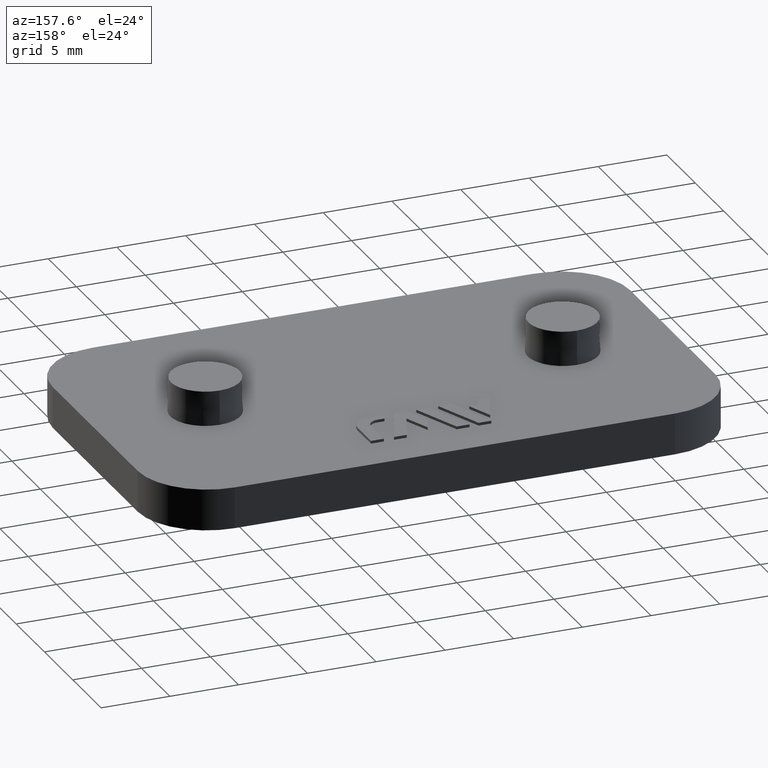
[diagram: clean part render]
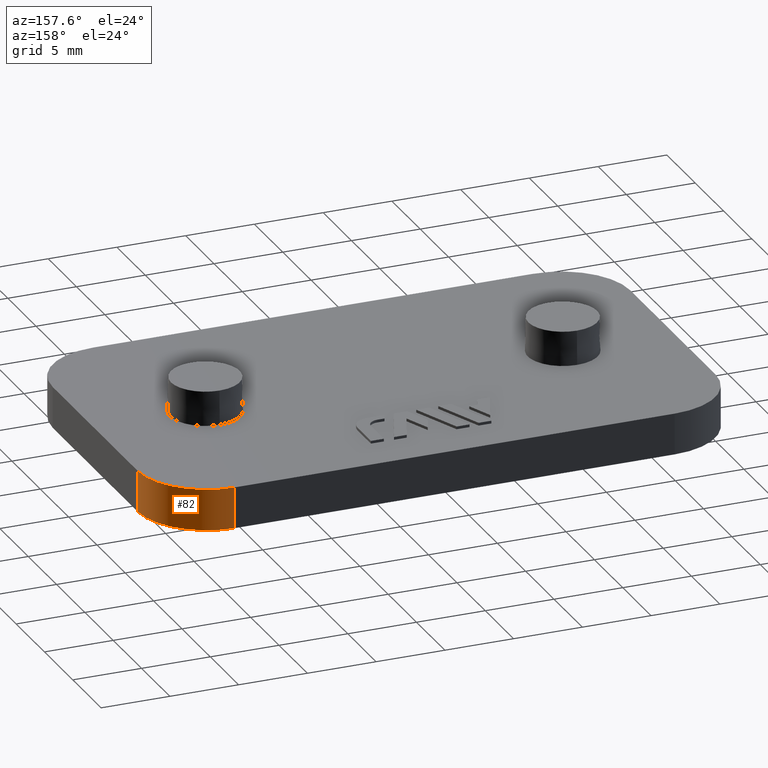
[diagram: same view with one face highlighted and labeled with its STEP entity id]
A machine part, auxiliary view. The second image highlights one B-rep face of the part: STEP entity #82.
In plain terms, the highlighted cylindrical surface (partial cylindrical patch) has radius 5 mm, axis along (-0, 0, 1).
Its self-contained STEP definition (entity closure, byte-faithful):
#82 = ADVANCED_FACE( '', ( #160 ), #161, .T. );
#160 = FACE_OUTER_BOUND( '', #293, .T. );
#161 = CYLINDRICAL_SURFACE( '', #294, 5.00000000000000 );
#293 = EDGE_LOOP( '', ( #502, #503, #504, #505 ) );
#294 = AXIS2_PLACEMENT_3D( '', #506, #507, #508 );
#502 = ORIENTED_EDGE( '', *, *, #945, .F. );
#503 = ORIENTED_EDGE( '', *, *, #920, .F. );
#504 = ORIENTED_EDGE( '', *, *, #893, .T. );
#505 = ORIENTED_EDGE( '', *, *, #929, .T. );
#506 = CARTESIAN_POINT( '', ( 16.0000000000000, 7.50000000000001, 64.3690937321107 ) );
#507 = DIRECTION( '', ( -1.60751816480226E-016, 1.81794180051289E-016, 1.00000000000000 ) );
#508 = DIRECTION( '', ( 1.00000000000000, 5.90573087550521E-032, 1.60751816480226E-016 ) );
#893 = EDGE_CURVE( '', #1052, #1053, #1054, .T. );
#920 = EDGE_CURVE( '', #1052, #1106, #1107, .T. );
#929 = EDGE_CURVE( '', #1053, #1119, #1122, .T. );
#945 = EDGE_CURVE( '', #1106, #1119, #1151, .T. );
#1052 = VERTEX_POINT( '', #1311 );
#1053 = VERTEX_POINT( '', #1312 );
#1054 = CIRCLE( '', #1313, 5.00000000000000 );
#1106 = VERTEX_POINT( '', #1384 );
#1107 = LINE( '', #1385, #1386 );
#1119 = VERTEX_POINT( '', #1405 );
#1122 = LINE( '', #1409, #1410 );
#1151 = CIRCLE( '', #1453, 5.00000000000000 );
#1311 = CARTESIAN_POINT( '', ( 16.0000000000000, 12.5000000000000, 2.99999999999998 ) );
#1312 = CARTESIAN_POINT( '', ( 21.0000000000000, 7.50000000000001, 2.99999999999998 ) );
#1313 = AXIS2_PLACEMENT_3D( '', #1669, #1670, #1671 );
#1384 = CARTESIAN_POINT( '', ( 16.0000000000000, 12.5000000000000, -2.15820606828607E-014 ) );
#1385 = CARTESIAN_POINT( '', ( 16.0000000000000, 12.5000000000000, 64.3690937321107 ) );
#1386 = VECTOR( '', #1712, 1000.00000000000 );
#1405 = CARTESIAN_POINT( '', ( 21.0000000000000, 7.50000000000001, -2.12759090944051E-014 ) );
#1409 = CARTESIAN_POINT( '', ( 21.0000000000000, 7.50000000000001, 64.3690937321107 ) );
#1410 = VECTOR( '', #1721, 1000.00000000000 );
#1453 = AXIS2_PLACEMENT_3D( '', #1739, #1740, #1741 );
#1669 = CARTESIAN_POINT( '', ( 16.0000000000000, 7.50000000000000, 2.99999999999998 ) );
#1670 = DIRECTION( '', ( 0.000000000000000, -6.12303176911189E-017, -1.00000000000000 ) );
#1671 = DIRECTION( '', ( 0.000000000000000, 1.00000000000000, -6.12303176911189E-017 ) );
#1712 = DIRECTION( '', ( 1.60751816480226E-016, -1.81794180051289E-016, -1.00000000000000 ) );
#1721 = DIRECTION( '', ( 1.60751816480226E-016, -1.81794180051289E-016, -1.00000000000000 ) );
#1739 = CARTESIAN_POINT( '', ( 16.0000000000000, 7.50000000000000, -2.12759090944051E-014 ) );
#1740 = DIRECTION( '', ( 0.000000000000000, -6.12303176911189E-017, -1.00000000000000 ) );
#1741 = DIRECTION( '', ( 0.000000000000000, 1.00000000000000, -6.12303176911189E-017 ) );